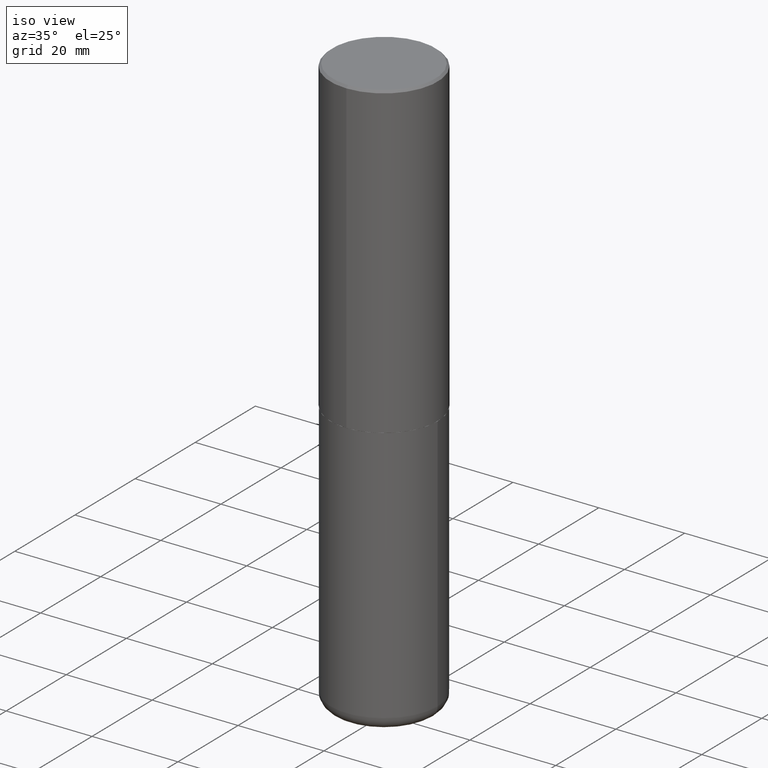
[diagram: clean part render]
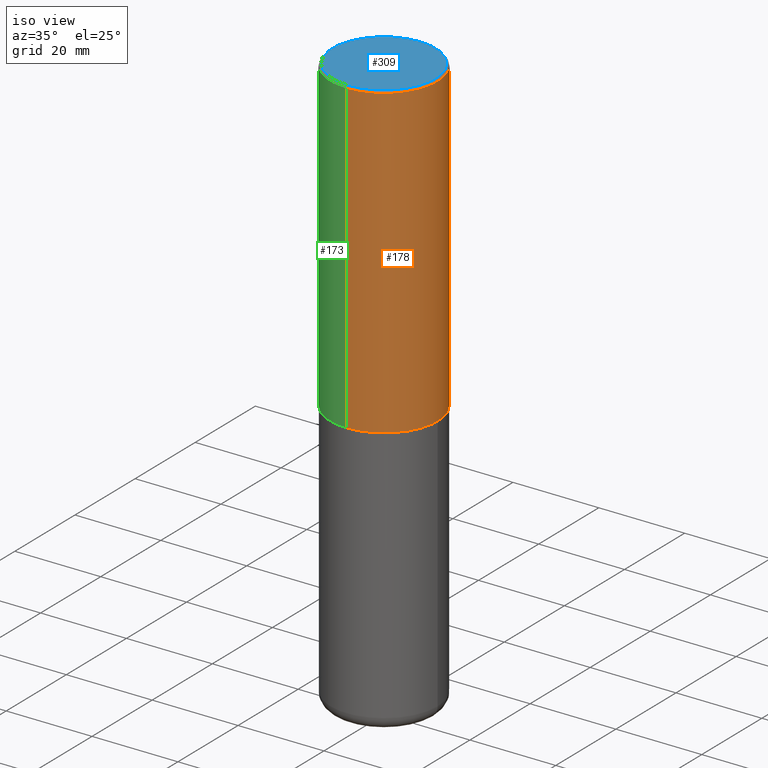
[diagram: same view with three faces highlighted in distinct colors, each labeled with its STEP entity id]
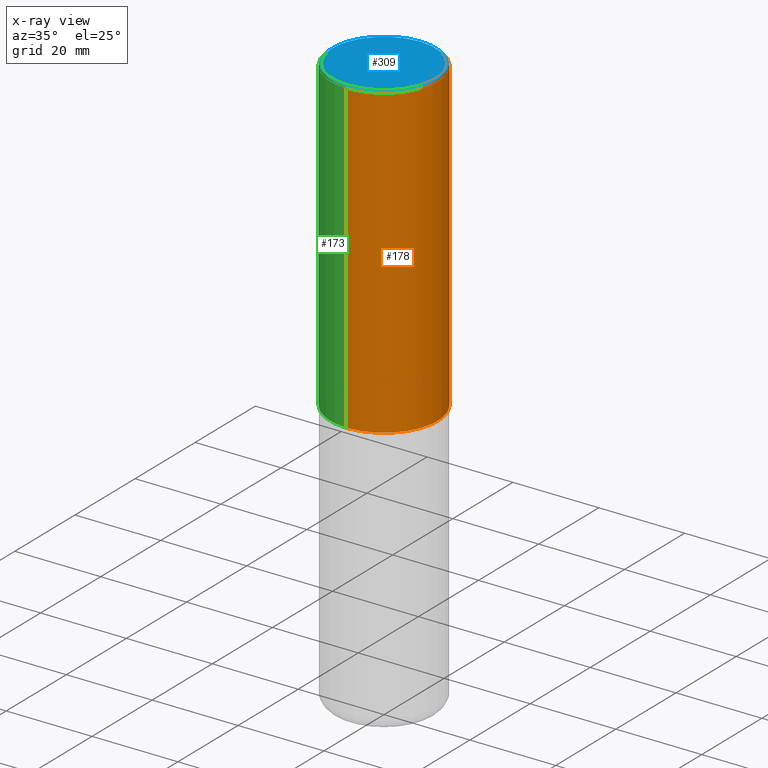
[diagram: x-ray of the same camera — body ghosted, the three highlighted faces saturated]
A machine part, iso view with three faces highlighted in distinct colors.
The next image is the same camera in x-ray (body ghosted, the three faces saturated) — at least one of them is partly hidden behind the body in this view.
Their STEP definitions:

[orange] entity #178 — the highlighted cylindrical surface (partial cylindrical patch) has radius 12.5006 mm, axis along (-0, 0, 1).
#1 = ORIENTED_EDGE ( 'NONE', *, *, #407, .F. ) ;
#7 = EDGE_CURVE ( 'NONE', #287, #387, #245, .T. ) ;
#10 = CYLINDRICAL_SURFACE ( 'NONE', #364, 0.4921500000000000874 ) ;
#44 = EDGE_CURVE ( 'NONE', #387, #189, #46, .T. ) ;
#46 = LINE ( 'NONE', #203, #322 ) ;
#48 = DIRECTION ( 'NONE',  ( -6.982962677686265922E-15, -1.000000000000000000, 3.330506545156063891E-15 ) ) ;
#62 = LINE ( 'NONE', #105, #160 ) ;
#82 = AXIS2_PLACEMENT_3D ( 'NONE', #338, #274, #48 ) ;
#100 = CARTESIAN_POINT ( 'NONE',  ( 3.436665081823296171E-15, 0.4921499999999999209, -0.02000000000000182535 ) ) ;
#101 = DIRECTION ( 'NONE',  ( -6.982962677686265922E-15, -1.000000000000000000, 3.495297233588267464E-15 ) ) ;
#105 = CARTESIAN_POINT ( 'NONE',  ( -3.436665081823296565E-15, -0.4921500000000000874, 1.718501431755139545E-15 ) ) ;
#155 = VERTEX_POINT ( 'NONE', #159 ) ;
#159 = CARTESIAN_POINT ( 'NONE',  ( -3.376394089603258262E-15, -0.4921500000000000319, -0.01999999999999838712 ) ) ;
#160 = VECTOR ( 'NONE', #368, 39.37007874015748143 ) ;
#178 = ADVANCED_FACE ( 'NONE', ( #297 ), #10, .T. ) ;
#189 = VERTEX_POINT ( 'NONE', #100 ) ;
#203 = CARTESIAN_POINT ( 'NONE',  ( 3.496936074043333291E-15, 0.4921500000000000874, -1.718501431755139545E-15 ) ) ;
#235 = CARTESIAN_POINT ( 'NONE',  ( 0.000000000000000000, 0.000000000000000000, 0.000000000000000000 ) ) ;
#245 = CIRCLE ( 'NONE', #82, 0.4921500000000003094 ) ;
#248 = DIRECTION ( 'NONE',  ( -2.445229172240879899E-29, 3.491824508290438219E-15, 1.000000000000000000 ) ) ;
#263 = DIRECTION ( 'NONE',  ( -2.445229172240879899E-29, 3.491824508290438219E-15, 1.000000000000000000 ) ) ;
#274 = DIRECTION ( 'NONE',  ( -2.445229172240879899E-29, 3.491824508290438219E-15, 1.000000000000000000 ) ) ;
#287 = VERTEX_POINT ( 'NONE', #325 ) ;
#293 = ORIENTED_EDGE ( 'NONE', *, *, #7, .T. ) ;
#297 = FACE_OUTER_BOUND ( 'NONE', #362, .T. ) ;
#322 = VECTOR ( 'NONE', #341, 39.37007874015748143 ) ;
#325 = CARTESIAN_POINT ( 'NONE',  ( -3.436665081823228329E-15, -0.4921500000000101904, -2.833699999999998997 ) ) ;
#330 = CARTESIAN_POINT ( 'NONE',  ( 3.496936074043369184E-15, 0.4921499999999904285, -2.833700000000002106 ) ) ;
#334 = CIRCLE ( 'NONE', #400, 0.4921499999999999764 ) ;
#338 = CARTESIAN_POINT ( 'NONE',  ( 6.929045905378983914E-29, -9.894783109142616722E-15, -2.833700000000000330 ) ) ;
#341 = DIRECTION ( 'NONE',  ( -2.445229172240879899E-29, 3.491824508290438613E-15, 1.000000000000000000 ) ) ;
#361 = CARTESIAN_POINT ( 'NONE',  ( 4.890458344481786073E-31, -6.983649016580912824E-17, -0.02000000000000010797 ) ) ;
#362 = EDGE_LOOP ( 'NONE', ( #293, #391, #1, #418 ) ) ;
#364 = AXIS2_PLACEMENT_3D ( 'NONE', #235, #263, #371 ) ;
#368 = DIRECTION ( 'NONE',  ( -2.445229172240879899E-29, 3.491824508290438613E-15, 1.000000000000000000 ) ) ;
#371 = DIRECTION ( 'NONE',  ( -6.982962677686265922E-15, -1.000000000000000000, 3.491824508290438219E-15 ) ) ;
#387 = VERTEX_POINT ( 'NONE', #330 ) ;
#388 = EDGE_CURVE ( 'NONE', #287, #155, #62, .T. ) ;
#391 = ORIENTED_EDGE ( 'NONE', *, *, #44, .T. ) ;
#400 = AXIS2_PLACEMENT_3D ( 'NONE', #361, #248, #101 ) ;
#407 = EDGE_CURVE ( 'NONE', #155, #189, #334, .T. ) ;
#418 = ORIENTED_EDGE ( 'NONE', *, *, #388, .F. ) ;

[blue] entity #309 — the highlighted planar face has unit normal (0, -0, -1).
#50 = CARTESIAN_POINT ( 'NONE',  ( 3.366835455046433267E-15, 0.4721500000000000696, -1.814974901248707542E-15 ) ) ;
#54 = AXIS2_PLACEMENT_3D ( 'NONE', #113, #242, #376 ) ;
#72 = EDGE_CURVE ( 'NONE', #259, #265, #409, .T. ) ;
#79 = CARTESIAN_POINT ( 'NONE',  ( 4.066659649933121937E-45, -5.807251931114062973E-31, -1.663099596593768543E-16 ) ) ;
#99 = ORIENTED_EDGE ( 'NONE', *, *, #72, .T. ) ;
#113 = CARTESIAN_POINT ( 'NONE',  ( 3.297005828269570364E-15, 0.4721500000000000696, -1.731819921419018991E-15 ) ) ;
#121 = DIRECTION ( 'NONE',  ( -2.445229172240879899E-29, 3.491824508290438219E-15, 1.000000000000000000 ) ) ;
#125 = ORIENTED_EDGE ( 'NONE', *, *, #294, .T. ) ;
#133 = EDGE_LOOP ( 'NONE', ( #99, #125 ) ) ;
#139 = FACE_OUTER_BOUND ( 'NONE', #133, .T. ) ;
#220 = CARTESIAN_POINT ( 'NONE',  ( 4.066659649933121937E-45, -5.807251931114062973E-31, -1.663099596593768543E-16 ) ) ;
#239 = PLANE ( 'NONE',  #54 ) ;
#242 = DIRECTION ( 'NONE',  ( 2.445229172240879339E-29, -3.491824508290438613E-15, -1.000000000000000000 ) ) ;
#259 = VERTEX_POINT ( 'NONE', #50 ) ;
#265 = VERTEX_POINT ( 'NONE', #413 ) ;
#280 = DIRECTION ( 'NONE',  ( -6.982962677686264344E-15, -1.000000000000000000, 3.491824508290437824E-15 ) ) ;
#294 = EDGE_CURVE ( 'NONE', #265, #259, #373, .T. ) ;
#309 = ADVANCED_FACE ( 'NONE', ( #139 ), #239, .F. ) ;
#317 = DIRECTION ( 'NONE',  ( -2.445229172240879899E-29, 3.491824508290438219E-15, 1.000000000000000000 ) ) ;
#353 = DIRECTION ( 'NONE',  ( -6.982962677686264344E-15, -1.000000000000000000, 3.491824508290437824E-15 ) ) ;
#373 = CIRCLE ( 'NONE', #416, 0.4721500000000000696 ) ;
#376 = DIRECTION ( 'NONE',  ( 6.982962677686265922E-15, 1.000000000000000000, -3.491824508290438613E-15 ) ) ;
#377 = AXIS2_PLACEMENT_3D ( 'NONE', #79, #317, #353 ) ;
#409 = CIRCLE ( 'NONE', #377, 0.4721500000000000696 ) ;
#413 = CARTESIAN_POINT ( 'NONE',  ( -3.307789109625543325E-15, -0.4721500000000000696, 1.482354981929953537E-15 ) ) ;
#416 = AXIS2_PLACEMENT_3D ( 'NONE', #220, #121, #280 ) ;

[green] entity #173 — the highlighted cylindrical surface (partial cylindrical patch) has radius 12.5006 mm, axis along (-0, 0, 1).
#17 = AXIS2_PLACEMENT_3D ( 'NONE', #176, #316, #307 ) ;
#24 = DIRECTION ( 'NONE',  ( -2.445229172240879899E-29, 3.491824508290438219E-15, 1.000000000000000000 ) ) ;
#37 = EDGE_LOOP ( 'NONE', ( #67, #71, #164, #213 ) ) ;
#44 = EDGE_CURVE ( 'NONE', #387, #189, #46, .T. ) ;
#45 = AXIS2_PLACEMENT_3D ( 'NONE', #145, #412, #117 ) ;
#46 = LINE ( 'NONE', #203, #322 ) ;
#53 = AXIS2_PLACEMENT_3D ( 'NONE', #241, #24, #382 ) ;
#58 = CIRCLE ( 'NONE', #45, 0.4921500000000003094 ) ;
#62 = LINE ( 'NONE', #105, #160 ) ;
#67 = ORIENTED_EDGE ( 'NONE', *, *, #44, .F. ) ;
#71 = ORIENTED_EDGE ( 'NONE', *, *, #221, .T. ) ;
#100 = CARTESIAN_POINT ( 'NONE',  ( 3.436665081823296171E-15, 0.4921499999999999209, -0.02000000000000182535 ) ) ;
#105 = CARTESIAN_POINT ( 'NONE',  ( -3.436665081823296565E-15, -0.4921500000000000874, 1.718501431755139545E-15 ) ) ;
#117 = DIRECTION ( 'NONE',  ( -6.982962677686265922E-15, -1.000000000000000000, 3.330506545156063891E-15 ) ) ;
#145 = CARTESIAN_POINT ( 'NONE',  ( 6.929045905378983914E-29, -9.894783109142616722E-15, -2.833700000000000330 ) ) ;
#155 = VERTEX_POINT ( 'NONE', #159 ) ;
#159 = CARTESIAN_POINT ( 'NONE',  ( -3.376394089603258262E-15, -0.4921500000000000319, -0.01999999999999838712 ) ) ;
#160 = VECTOR ( 'NONE', #368, 39.37007874015748143 ) ;
#163 = FACE_OUTER_BOUND ( 'NONE', #37, .T. ) ;
#164 = ORIENTED_EDGE ( 'NONE', *, *, #388, .T. ) ;
#173 = ADVANCED_FACE ( 'NONE', ( #163 ), #199, .T. ) ;
#176 = CARTESIAN_POINT ( 'NONE',  ( 0.000000000000000000, 0.000000000000000000, 0.000000000000000000 ) ) ;
#189 = VERTEX_POINT ( 'NONE', #100 ) ;
#199 = CYLINDRICAL_SURFACE ( 'NONE', #17, 0.4921500000000000874 ) ;
#203 = CARTESIAN_POINT ( 'NONE',  ( 3.496936074043333291E-15, 0.4921500000000000874, -1.718501431755139545E-15 ) ) ;
#213 = ORIENTED_EDGE ( 'NONE', *, *, #255, .F. ) ;
#221 = EDGE_CURVE ( 'NONE', #387, #287, #58, .T. ) ;
#236 = CIRCLE ( 'NONE', #53, 0.4921499999999999764 ) ;
#241 = CARTESIAN_POINT ( 'NONE',  ( 4.890458344481786073E-31, -6.983649016580912824E-17, -0.02000000000000010797 ) ) ;
#255 = EDGE_CURVE ( 'NONE', #189, #155, #236, .T. ) ;
#287 = VERTEX_POINT ( 'NONE', #325 ) ;
#307 = DIRECTION ( 'NONE',  ( -6.982962677686265922E-15, -1.000000000000000000, 3.491824508290438219E-15 ) ) ;
#316 = DIRECTION ( 'NONE',  ( -2.445229172240879899E-29, 3.491824508290438219E-15, 1.000000000000000000 ) ) ;
#322 = VECTOR ( 'NONE', #341, 39.37007874015748143 ) ;
#325 = CARTESIAN_POINT ( 'NONE',  ( -3.436665081823228329E-15, -0.4921500000000101904, -2.833699999999998997 ) ) ;
#330 = CARTESIAN_POINT ( 'NONE',  ( 3.496936074043369184E-15, 0.4921499999999904285, -2.833700000000002106 ) ) ;
#341 = DIRECTION ( 'NONE',  ( -2.445229172240879899E-29, 3.491824508290438613E-15, 1.000000000000000000 ) ) ;
#368 = DIRECTION ( 'NONE',  ( -2.445229172240879899E-29, 3.491824508290438613E-15, 1.000000000000000000 ) ) ;
#382 = DIRECTION ( 'NONE',  ( -6.982962677686265922E-15, -1.000000000000000000, 3.495297233588267464E-15 ) ) ;
#387 = VERTEX_POINT ( 'NONE', #330 ) ;
#388 = EDGE_CURVE ( 'NONE', #287, #155, #62, .T. ) ;
#412 = DIRECTION ( 'NONE',  ( -2.445229172240879899E-29, 3.491824508290438219E-15, 1.000000000000000000 ) ) ;